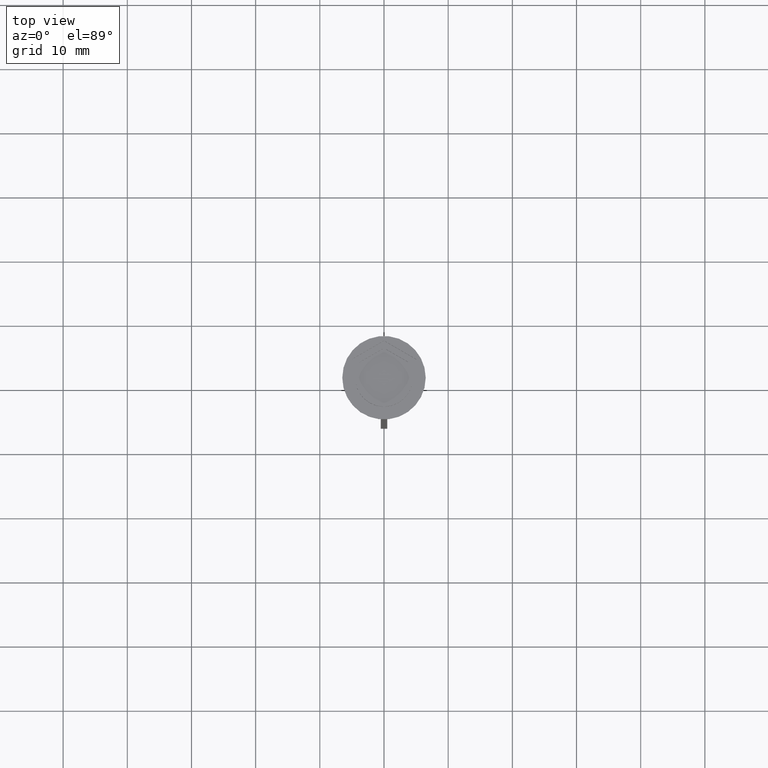
[diagram: clean part render]
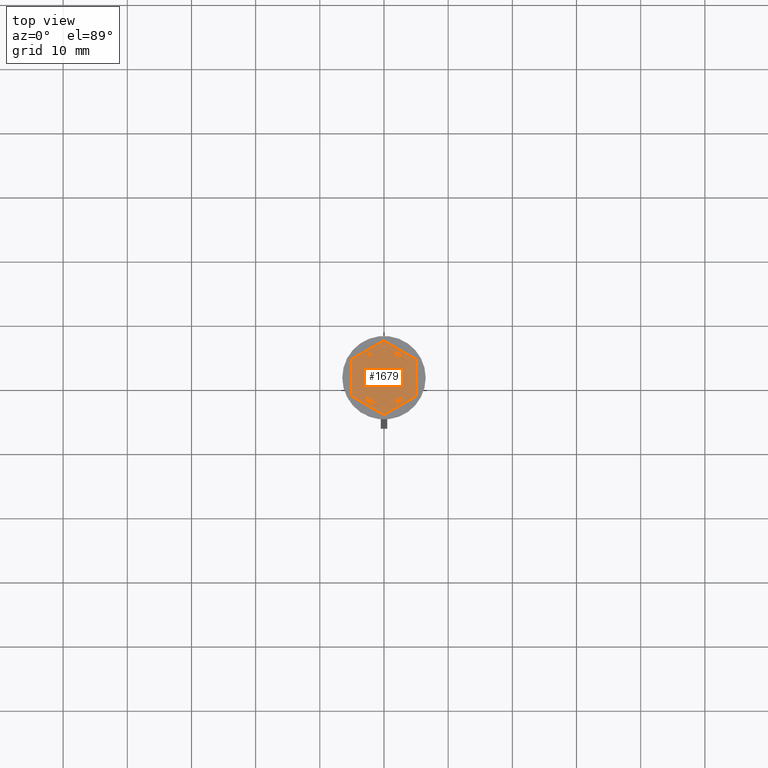
[diagram: same view with one face highlighted and labeled with its STEP entity id]
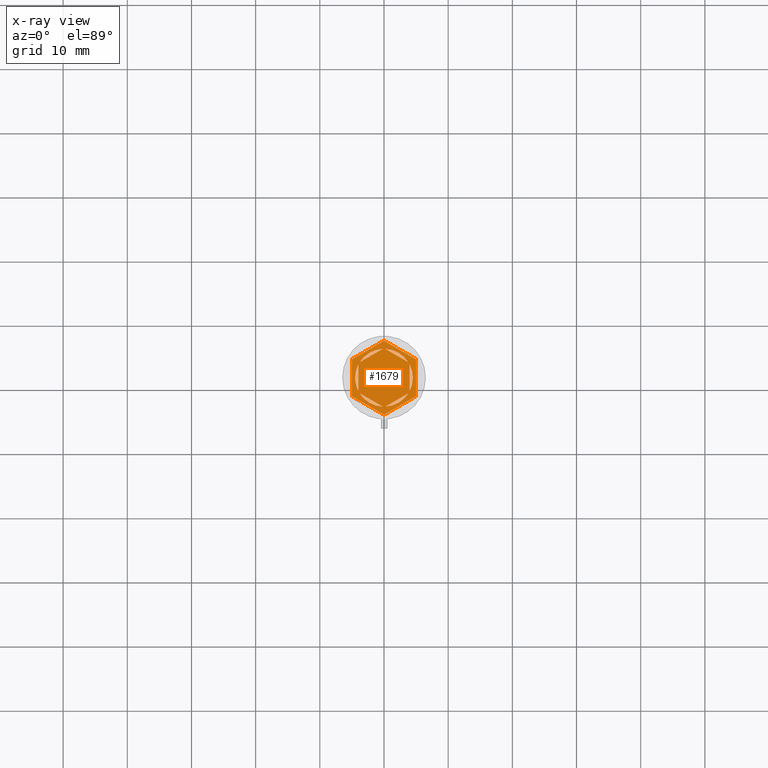
[diagram: x-ray of the same camera — body ghosted, the highlighted face saturated]
A machine part, top view. The second image highlights one B-rep face of the part: STEP entity #1679.
The next image is the same camera in x-ray: the body ghosted, the highlighted face saturated — about 0% of this face is hidden behind the body in this view.
In plain terms, the highlighted planar face has unit normal (0, 0, 1).
Its self-contained STEP definition (entity closure, byte-faithful):
#6 = ORIENTED_EDGE ( 'NONE', *, *, #136, .F. ) ;
#13 = CARTESIAN_POINT ( 'NONE',  ( 0.000000000000000000, 0.000000000000000000, -1.000000000000000000 ) ) ;
#15 = EDGE_CURVE ( 'NONE', #581, #518, #750, .T. ) ;
#31 = CARTESIAN_POINT ( 'NONE',  ( 5.000000000000000000, -2.886751345948128655, -1.000000000000000000 ) ) ;
#100 = ORIENTED_EDGE ( 'NONE', *, *, #1604, .F. ) ;
#120 = AXIS2_PLACEMENT_3D ( 'NONE', #338, #2067, #2409 ) ;
#128 = VECTOR ( 'NONE', #1323, 1000.000000000000114 ) ;
#136 = EDGE_CURVE ( 'NONE', #358, #1261, #475, .T. ) ;
#144 = CARTESIAN_POINT ( 'NONE',  ( -4.000000000000000000, 2.309401076758502924, -1.000000000000000888 ) ) ;
#162 = CIRCLE ( 'NONE', #2043, 4.500000000000000888 ) ;
#173 = DIRECTION ( 'NONE',  ( 1.000000000000000000, 0.000000000000000000, 0.000000000000000000 ) ) ;
#180 = DIRECTION ( 'NONE',  ( -0.8660254037844387076, -0.4999999999999998890, 0.000000000000000000 ) ) ;
#183 = CARTESIAN_POINT ( 'NONE',  ( 0.000000000000000000, 0.000000000000000000, -1.000000000000000000 ) ) ;
#189 = FACE_BOUND ( 'NONE', #1860, .T. ) ;
#197 = VECTOR ( 'NONE', #422, 1000.000000000000227 ) ;
#206 = DIRECTION ( 'NONE',  ( 1.000000000000000000, 0.000000000000000000, 0.000000000000000000 ) ) ;
#208 = VECTOR ( 'NONE', #1096, 1000.000000000000000 ) ;
#215 = CARTESIAN_POINT ( 'NONE',  ( 3.999999999999999112, 2.061552812808832513, -1.000000000000000888 ) ) ;
#274 = VERTEX_POINT ( 'NONE', #895 ) ;
#313 = VECTOR ( 'NONE', #180, 1000.000000000000114 ) ;
#315 = CARTESIAN_POINT ( 'NONE',  ( 3.999999999999999112, -2.309401076758503812, -1.000000000000000888 ) ) ;
#329 = AXIS2_PLACEMENT_3D ( 'NONE', #345, #1878, #173 ) ;
#338 = CARTESIAN_POINT ( 'NONE',  ( 0.000000000000000000, 0.000000000000000000, -1.000000000000000000 ) ) ;
#345 = CARTESIAN_POINT ( 'NONE',  ( 0.000000000000000000, 0.000000000000000000, -1.000000000000000000 ) ) ;
#352 = DIRECTION ( 'NONE',  ( 1.000000000000000000, 0.000000000000000000, -0.000000000000000000 ) ) ;
#358 = VERTEX_POINT ( 'NONE', #2334 ) ;
#376 = CARTESIAN_POINT ( 'NONE',  ( -0.2146428928642871992, -4.494878021542169755, -1.000000000000000888 ) ) ;
#399 = EDGE_CURVE ( 'NONE', #1832, #1808, #1091, .T. ) ;
#422 = DIRECTION ( 'NONE',  ( 0.8660254037844385966, 0.4999999999999998890, 0.000000000000000000 ) ) ;
#425 = DIRECTION ( 'NONE',  ( 0.8660254037844387076, -0.4999999999999998335, 0.000000000000000000 ) ) ;
#450 = LINE ( 'NONE', #2172, #2282 ) ;
#475 = CIRCLE ( 'NONE', #1434, 4.500000000000000888 ) ;
#476 = EDGE_CURVE ( 'NONE', #681, #781, #450, .T. ) ;
#518 = VERTEX_POINT ( 'NONE', #1215 ) ;
#539 = CARTESIAN_POINT ( 'NONE',  ( 0.000000000000000000, 0.000000000000000000, -1.000000000000000000 ) ) ;
#540 = ORIENTED_EDGE ( 'NONE', *, *, #714, .F. ) ;
#556 = EDGE_CURVE ( 'NONE', #2119, #1948, #1820, .T. ) ;
#565 = CARTESIAN_POINT ( 'NONE',  ( -5.000000000000000888, -2.886751345948129543, -1.000000000000000000 ) ) ;
#575 = VERTEX_POINT ( 'NONE', #2396 ) ;
#578 = ORIENTED_EDGE ( 'NONE', *, *, #1303, .F. ) ;
#581 = VERTEX_POINT ( 'NONE', #2198 ) ;
#594 = VERTEX_POINT ( 'NONE', #2020 ) ;
#605 = EDGE_LOOP ( 'NONE', ( #578, #100 ) ) ;
#618 = ORIENTED_EDGE ( 'NONE', *, *, #476, .T. ) ;
#627 = CARTESIAN_POINT ( 'NONE',  ( 0.2146428928642876155, 4.494878021542170643, -1.000000000000000888 ) ) ;
#665 = EDGE_CURVE ( 'NONE', #1261, #358, #2057, .T. ) ;
#681 = VERTEX_POINT ( 'NONE', #867 ) ;
#686 = DIRECTION ( 'NONE',  ( 0.000000000000000000, 0.000000000000000000, 1.000000000000000000 ) ) ;
#692 = EDGE_CURVE ( 'NONE', #274, #927, #2163, .T. ) ;
#714 = EDGE_CURVE ( 'NONE', #1808, #1832, #1554, .T. ) ;
#717 = DIRECTION ( 'NONE',  ( -0.8660254037844384856, 0.5000000000000001110, 0.000000000000000000 ) ) ;
#737 = CARTESIAN_POINT ( 'NONE',  ( -8.673617379884035472E-16, -4.618802153517006737, -1.000000000000000888 ) ) ;
#748 = FACE_BOUND ( 'NONE', #605, .T. ) ;
#750 = CIRCLE ( 'NONE', #2439, 4.500000000000000888 ) ;
#769 = VERTEX_POINT ( 'NONE', #376 ) ;
#781 = VERTEX_POINT ( 'NONE', #1937 ) ;
#810 = EDGE_CURVE ( 'NONE', #594, #2119, #1710, .T. ) ;
#854 = DIRECTION ( 'NONE',  ( 0.000000000000000000, 0.000000000000000000, 1.000000000000000000 ) ) ;
#867 = CARTESIAN_POINT ( 'NONE',  ( 0.000000000000000000, 5.773502691896257311, -1.000000000000000000 ) ) ;
#890 = DIRECTION ( 'NONE',  ( 0.8660254037844385966, 0.5000000000000001110, -0.000000000000000000 ) ) ;
#895 = CARTESIAN_POINT ( 'NONE',  ( 3.785357107135712162, 2.433325208733341238, -1.000000000000000888 ) ) ;
#907 = LINE ( 'NONE', #565, #128 ) ;
#912 = VECTOR ( 'NONE', #2438, 1000.000000000000114 ) ;
#926 = LINE ( 'NONE', #144, #208 ) ;
#927 = VERTEX_POINT ( 'NONE', #627 ) ;
#943 = PLANE ( 'NONE',  #1561 ) ;
#947 = DIRECTION ( 'NONE',  ( 1.000000000000000000, 0.000000000000000000, 0.000000000000000000 ) ) ;
#955 = VECTOR ( 'NONE', #425, 1000.000000000000114 ) ;
#969 = ORIENTED_EDGE ( 'NONE', *, *, #665, .F. ) ;
#986 = CIRCLE ( 'NONE', #1557, 4.500000000000000888 ) ;
#1009 = EDGE_CURVE ( 'NONE', #1775, #581, #986, .T. ) ;
#1015 = LINE ( 'NONE', #2349, #2047 ) ;
#1023 = VERTEX_POINT ( 'NONE', #2459 ) ;
#1031 = VECTOR ( 'NONE', #2062, 1000.000000000000000 ) ;
#1064 = VECTOR ( 'NONE', #890, 1000.000000000000114 ) ;
#1091 = LINE ( 'NONE', #737, #313 ) ;
#1096 = DIRECTION ( 'NONE',  ( 0.000000000000000000, 1.000000000000000000, 0.000000000000000000 ) ) ;
#1130 = EDGE_CURVE ( 'NONE', #769, #1023, #1682, .T. ) ;
#1164 = CARTESIAN_POINT ( 'NONE',  ( 3.785357107135712162, -2.433325208733341238, -1.000000000000000888 ) ) ;
#1192 = DIRECTION ( 'NONE',  ( 0.000000000000000000, -1.000000000000000000, 0.000000000000000000 ) ) ;
#1194 = CARTESIAN_POINT ( 'NONE',  ( 0.000000000000000000, 0.000000000000000000, -1.000000000000000000 ) ) ;
#1215 = CARTESIAN_POINT ( 'NONE',  ( -4.000000000000000000, -2.061552812808831625, -1.000000000000000888 ) ) ;
#1217 = EDGE_LOOP ( 'NONE', ( #1946, #618, #2295, #1297, #1266, #1650 ) ) ;
#1227 = AXIS2_PLACEMENT_3D ( 'NONE', #1452, #686, #2224 ) ;
#1244 = EDGE_LOOP ( 'NONE', ( #2381, #2404 ) ) ;
#1261 = VERTEX_POINT ( 'NONE', #1912 ) ;
#1266 = ORIENTED_EDGE ( 'NONE', *, *, #810, .T. ) ;
#1290 = ORIENTED_EDGE ( 'NONE', *, *, #1130, .F. ) ;
#1293 = EDGE_LOOP ( 'NONE', ( #1380, #2010, #2271 ) ) ;
#1296 = FACE_OUTER_BOUND ( 'NONE', #1217, .T. ) ;
#1297 = ORIENTED_EDGE ( 'NONE', *, *, #1711, .T. ) ;
#1303 = EDGE_CURVE ( 'NONE', #575, #1858, #162, .T. ) ;
#1309 = FACE_BOUND ( 'NONE', #1293, .T. ) ;
#1323 = DIRECTION ( 'NONE',  ( 0.8660254037844387076, -0.4999999999999997224, 0.000000000000000000 ) ) ;
#1329 = CARTESIAN_POINT ( 'NONE',  ( 5.612359739892467248E-18, -5.773502691896257311, -1.000000000000000000 ) ) ;
#1361 = CARTESIAN_POINT ( 'NONE',  ( -4.000000000000000000, 2.061552812808831625, -1.000000000000000888 ) ) ;
#1380 = ORIENTED_EDGE ( 'NONE', *, *, #1009, .F. ) ;
#1404 = CIRCLE ( 'NONE', #329, 4.500000000000000888 ) ;
#1410 = CARTESIAN_POINT ( 'NONE',  ( 0.000000000000000000, 0.000000000000000000, -1.000000000000000000 ) ) ;
#1434 = AXIS2_PLACEMENT_3D ( 'NONE', #1194, #1972, #1606 ) ;
#1452 = CARTESIAN_POINT ( 'NONE',  ( 0.000000000000000000, 0.000000000000000000, -1.000000000000000000 ) ) ;
#1488 = CARTESIAN_POINT ( 'NONE',  ( 4.336808689942017736E-16, 4.618802153517006737, -1.000000000000000888 ) ) ;
#1489 = EDGE_LOOP ( 'NONE', ( #1889, #1290 ) ) ;
#1554 = CIRCLE ( 'NONE', #1227, 4.500000000000000888 ) ;
#1557 = AXIS2_PLACEMENT_3D ( 'NONE', #1410, #854, #2353 ) ;
#1561 = AXIS2_PLACEMENT_3D ( 'NONE', #539, #2072, #352 ) ;
#1580 = EDGE_CURVE ( 'NONE', #1948, #681, #1874, .T. ) ;
#1604 = EDGE_CURVE ( 'NONE', #1858, #575, #2390, .T. ) ;
#1606 = DIRECTION ( 'NONE',  ( 1.000000000000000000, 0.000000000000000000, 0.000000000000000000 ) ) ;
#1625 = CARTESIAN_POINT ( 'NONE',  ( -5.000000000000000888, -2.886751345948129543, -1.000000000000000000 ) ) ;
#1650 = ORIENTED_EDGE ( 'NONE', *, *, #556, .T. ) ;
#1679 = ADVANCED_FACE ( 'NONE', ( #2493, #748, #1731, #2087, #1309, #189, #1296 ), #943, .T. ) ;
#1682 = LINE ( 'NONE', #2256, #2209 ) ;
#1710 = LINE ( 'NONE', #1329, #197 ) ;
#1711 = EDGE_CURVE ( 'NONE', #1876, #594, #907, .T. ) ;
#1731 = FACE_BOUND ( 'NONE', #2305, .T. ) ;
#1742 = CARTESIAN_POINT ( 'NONE',  ( 0.2146428928642876155, -4.494878021542170643, -1.000000000000000888 ) ) ;
#1750 = CARTESIAN_POINT ( 'NONE',  ( 4.000000000000000000, 2.309401076758504257, -1.000000000000000888 ) ) ;
#1769 = EDGE_CURVE ( 'NONE', #781, #1876, #1015, .T. ) ;
#1775 = VERTEX_POINT ( 'NONE', #1361 ) ;
#1808 = VERTEX_POINT ( 'NONE', #1742 ) ;
#1820 = LINE ( 'NONE', #1830, #1845 ) ;
#1830 = CARTESIAN_POINT ( 'NONE',  ( 5.000000000000000000, -2.886751345948128655, -1.000000000000000000 ) ) ;
#1832 = VERTEX_POINT ( 'NONE', #1164 ) ;
#1845 = VECTOR ( 'NONE', #1979, 1000.000000000000000 ) ;
#1858 = VERTEX_POINT ( 'NONE', #215 ) ;
#1860 = EDGE_LOOP ( 'NONE', ( #6, #969 ) ) ;
#1874 = LINE ( 'NONE', #2220, #912 ) ;
#1876 = VERTEX_POINT ( 'NONE', #1625 ) ;
#1878 = DIRECTION ( 'NONE',  ( 0.000000000000000000, 0.000000000000000000, 1.000000000000000000 ) ) ;
#1889 = ORIENTED_EDGE ( 'NONE', *, *, #2286, .F. ) ;
#1912 = CARTESIAN_POINT ( 'NONE',  ( -3.785357107135713939, 2.433325208733339018, -1.000000000000000888 ) ) ;
#1918 = LINE ( 'NONE', #1750, #955 ) ;
#1937 = CARTESIAN_POINT ( 'NONE',  ( -5.000000000000000888, 2.886751345948128655, -1.000000000000000000 ) ) ;
#1946 = ORIENTED_EDGE ( 'NONE', *, *, #1580, .T. ) ;
#1948 = VERTEX_POINT ( 'NONE', #2248 ) ;
#1972 = DIRECTION ( 'NONE',  ( 0.000000000000000000, 0.000000000000000000, 1.000000000000000000 ) ) ;
#1979 = DIRECTION ( 'NONE',  ( 1.502314598737159278E-16, 1.000000000000000000, 0.000000000000000000 ) ) ;
#2006 = DIRECTION ( 'NONE',  ( -0.8660254037844387076, -0.4999999999999998890, 0.000000000000000000 ) ) ;
#2010 = ORIENTED_EDGE ( 'NONE', *, *, #2297, .F. ) ;
#2020 = CARTESIAN_POINT ( 'NONE',  ( 5.612359739892467248E-18, -5.773502691896257311, -1.000000000000000000 ) ) ;
#2043 = AXIS2_PLACEMENT_3D ( 'NONE', #13, #2311, #947 ) ;
#2047 = VECTOR ( 'NONE', #1192, 1000.000000000000000 ) ;
#2057 = LINE ( 'NONE', #1488, #1064 ) ;
#2062 = DIRECTION ( 'NONE',  ( -1.877893248421448296E-16, -1.000000000000000000, 0.000000000000000000 ) ) ;
#2067 = DIRECTION ( 'NONE',  ( 0.000000000000000000, 0.000000000000000000, 1.000000000000000000 ) ) ;
#2072 = DIRECTION ( 'NONE',  ( 0.000000000000000000, 0.000000000000000000, 1.000000000000000000 ) ) ;
#2087 = FACE_BOUND ( 'NONE', #1489, .T. ) ;
#2111 = EDGE_CURVE ( 'NONE', #927, #274, #1918, .T. ) ;
#2119 = VERTEX_POINT ( 'NONE', #31 ) ;
#2163 = CIRCLE ( 'NONE', #120, 4.500000000000000888 ) ;
#2172 = CARTESIAN_POINT ( 'NONE',  ( 0.000000000000000000, 5.773502691896257311, -1.000000000000000000 ) ) ;
#2198 = CARTESIAN_POINT ( 'NONE',  ( -4.500000000000000888, 0.000000000000000000, -1.000000000000000000 ) ) ;
#2209 = VECTOR ( 'NONE', #717, 1000.000000000000227 ) ;
#2220 = CARTESIAN_POINT ( 'NONE',  ( 5.000000000000000888, 2.886751345948129543, -1.000000000000000000 ) ) ;
#2224 = DIRECTION ( 'NONE',  ( 1.000000000000000000, 0.000000000000000000, 0.000000000000000000 ) ) ;
#2233 = ORIENTED_EDGE ( 'NONE', *, *, #399, .F. ) ;
#2248 = CARTESIAN_POINT ( 'NONE',  ( 5.000000000000000888, 2.886751345948129543, -1.000000000000000000 ) ) ;
#2256 = CARTESIAN_POINT ( 'NONE',  ( -4.000000000000000000, -2.309401076758503368, -1.000000000000000888 ) ) ;
#2271 = ORIENTED_EDGE ( 'NONE', *, *, #15, .F. ) ;
#2282 = VECTOR ( 'NONE', #2006, 1000.000000000000114 ) ;
#2286 = EDGE_CURVE ( 'NONE', #1023, #769, #1404, .T. ) ;
#2295 = ORIENTED_EDGE ( 'NONE', *, *, #1769, .T. ) ;
#2297 = EDGE_CURVE ( 'NONE', #518, #1775, #926, .T. ) ;
#2305 = EDGE_LOOP ( 'NONE', ( #540, #2233 ) ) ;
#2311 = DIRECTION ( 'NONE',  ( 0.000000000000000000, 0.000000000000000000, 1.000000000000000000 ) ) ;
#2334 = CARTESIAN_POINT ( 'NONE',  ( -0.2146428928642867551, 4.494878021542170643, -1.000000000000000888 ) ) ;
#2349 = CARTESIAN_POINT ( 'NONE',  ( -5.000000000000000888, 2.886751345948128655, -1.000000000000000000 ) ) ;
#2353 = DIRECTION ( 'NONE',  ( 1.000000000000000000, 0.000000000000000000, 0.000000000000000000 ) ) ;
#2381 = ORIENTED_EDGE ( 'NONE', *, *, #692, .F. ) ;
#2390 = LINE ( 'NONE', #315, #1031 ) ;
#2396 = CARTESIAN_POINT ( 'NONE',  ( 3.999999999999999112, -2.061552812808833846, -1.000000000000000888 ) ) ;
#2404 = ORIENTED_EDGE ( 'NONE', *, *, #2111, .F. ) ;
#2409 = DIRECTION ( 'NONE',  ( 1.000000000000000000, 0.000000000000000000, 0.000000000000000000 ) ) ;
#2438 = DIRECTION ( 'NONE',  ( -0.8660254037844387076, 0.4999999999999997224, 0.000000000000000000 ) ) ;
#2439 = AXIS2_PLACEMENT_3D ( 'NONE', #183, #2458, #206 ) ;
#2458 = DIRECTION ( 'NONE',  ( 0.000000000000000000, 0.000000000000000000, 1.000000000000000000 ) ) ;
#2459 = CARTESIAN_POINT ( 'NONE',  ( -3.785357107135713939, -2.433325208733338130, -1.000000000000000888 ) ) ;
#2493 = FACE_BOUND ( 'NONE', #1244, .T. ) ;